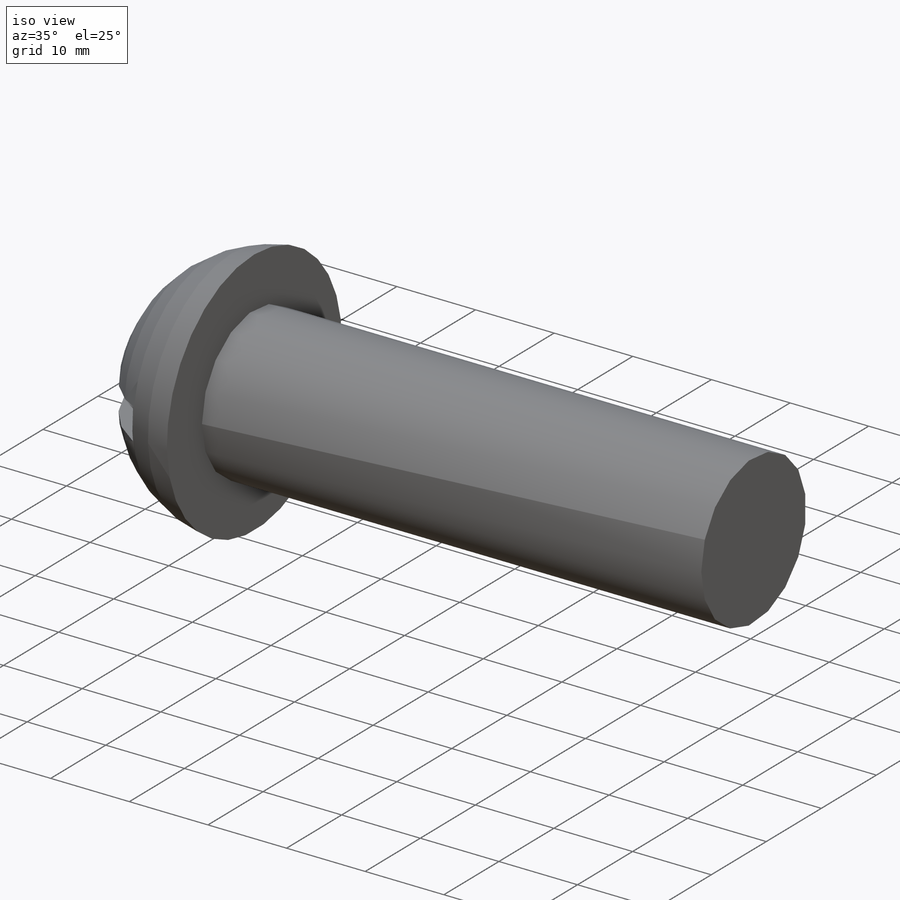
[diagram: iso view]
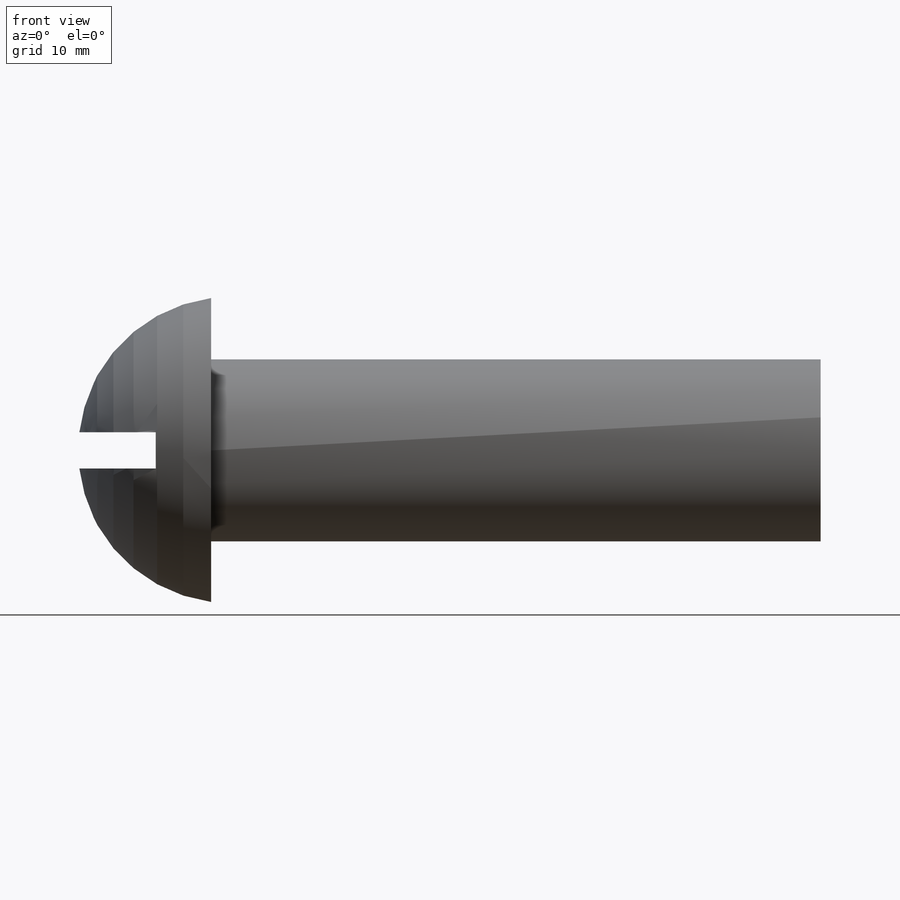
[diagram: front view]
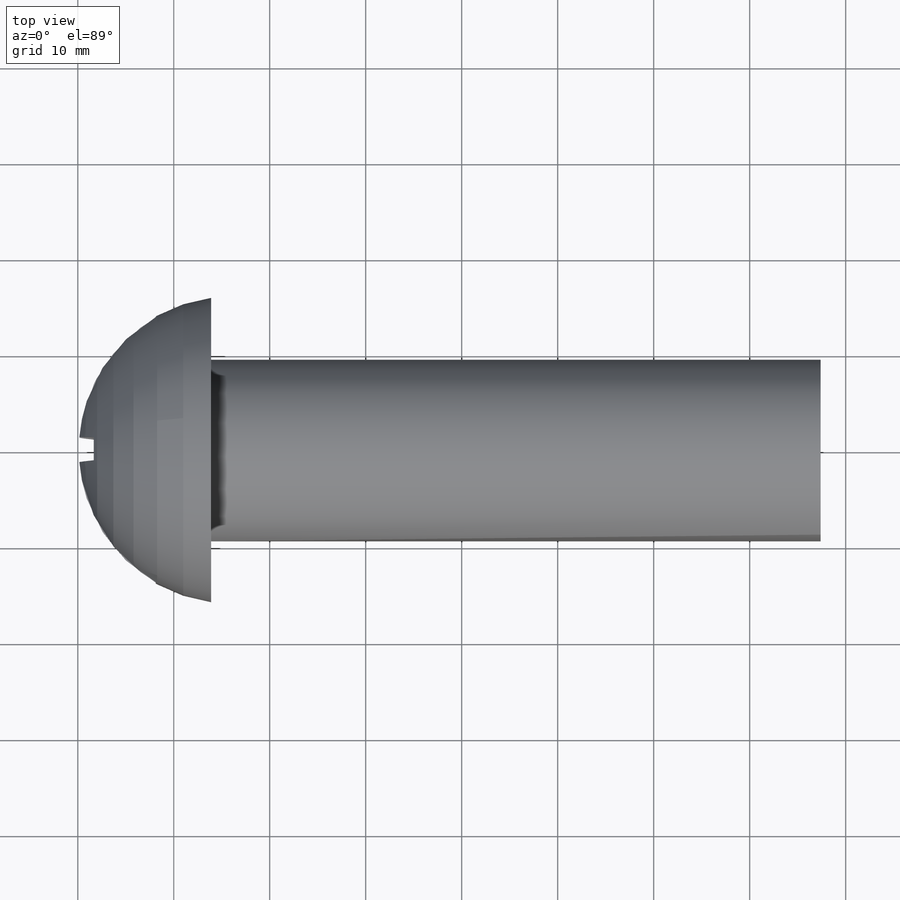
[diagram: top view]
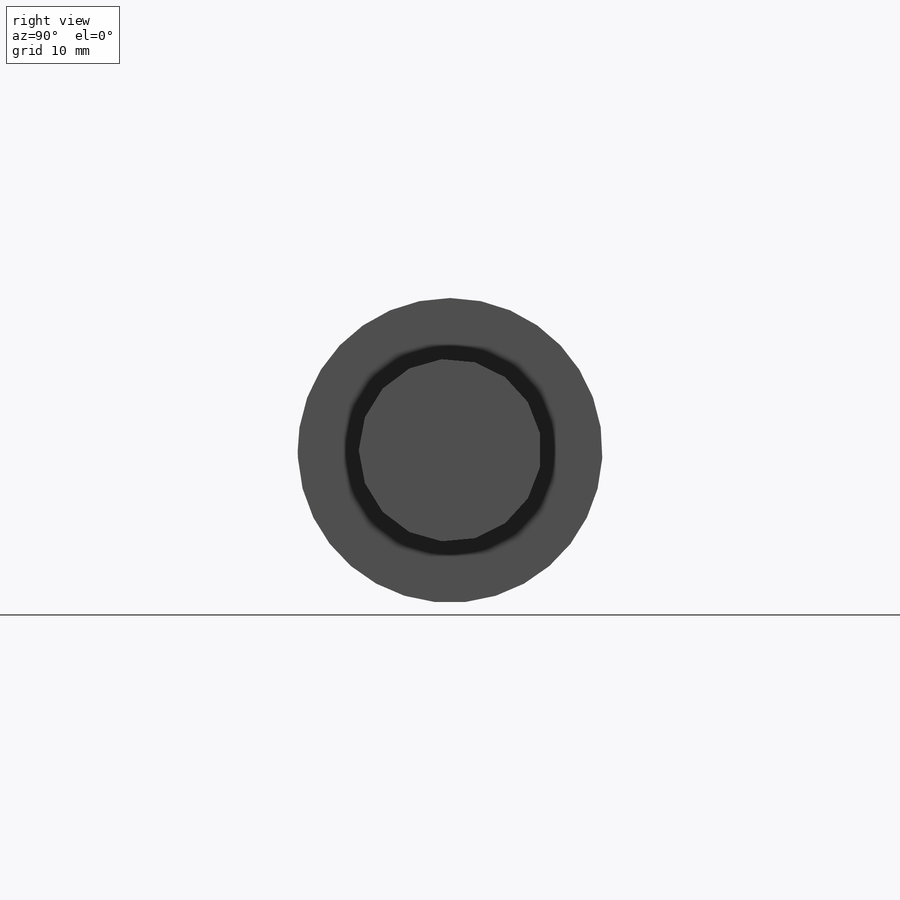
[diagram: right view]
SOLIDWORKS PART (.sldprt)
format: sldprt  version: not decoded by parser v0  size: 353,792 bytes
history: native  units: mm
features: sketch x5, plane x4, pattern_linear x4, material x1, revolve x1, thread x1, cut_revolve x1, cut_extrude x1, pattern_circular x1 (+8 scaffold rows collapsed)
feature tree (27):
  scaffold x8  (default folders/planes/origin — collapsed)
  material  "Material <not specified>"
  plane  "Plane1"
  plane  "Plane2"
  plane  "Plane3"
  sketch  "BodySke"  dims[c1.Diameter=19.05mm c1.Length=76.2mm c1.Head_dia=31.75mm c1.Head_ht=2.6162mm c2.Diameter=3.5052mm c2.Head_dia=6.604mm c2.Length=6.35mm c2.Advance=25.4mm c2.Thread_nom=6.35mm c2.Thread_lim=38.1mm c3.Advance=~0.79248mm c3.Thread_lim=48.895mm]
  revolve  "Base-Revolve"  [1 undecoded]
  thread  "ThreadCosmetic"  Diameter=5.55752mm Thread_length=5.55752mm Thread_minor=2.56032mm  [1 undecoded]
  cut_revolve  "ThreadSchematic"  [1 undecoded]
  sketch  "ThdSchSke"  dims[c1.Thread_minor=~1.03886mm c1.Diameter=~1.413535mm c1.Start=~0.988134mm c1.D4=~4.446753mm c1.Vee=60.0deg c2.Thread_minor=~1.03886mm c2.Start=~2.540025mm c2.D1=~0.108159mm c2.D2=~0.108159mm c3.D1=~0.216319mm c3.SideAngle=55.0deg c3.D2=~0.216319mm c3.VeeAngle=70.0deg c3.Thread_minor=~2.56032mm c3.Overcut=4.3815mm c3.Diameter=3.5052mm c3.D6=~8.326268mm c4.D1=~8.326268mm c5.D1=90.0deg c5.Start=11.1125mm c6.Start=~44.450025mm c7.Start=~11.988825mm c8.Start=~3.40868mm c8.D1=360.0deg c9.D1=360.0deg]
  sketch  "Sketch2"  dims[D1=6.604mm Slot_width=1.2192mm D2=3.302mm D3=0.6096mm]
  cut_extrude  "Slot"  Depth=1.7272mm Slot_depth=1.7272mm
  sketch  "Sketch3"  dims[Cross_width=0.8636mm D1=0.4318mm Cross_dia=4.2926mm D2=2.1463mm]
  plane  "Plane4"  Offset=2.4384mm Cross_depth=2.4384mm
  sketch  "Sketch4"  dims[D1=0.4318mm D2=0.2159mm D3=0.4318mm D4=0.2159mm]
  pattern_circular  "CirPattern1"  Count=2 Angle=90deg
  pattern_linear  "ThdSchPat"  Count1=9 Count2=1 Spacing1=0.69469mm Spacing2=50mm Num_threads=9 Advance=0.69469mm
  pattern_linear  "ConfigurationName"  Spacing1=0 CopiedFlag=0  [1 undecoded]
  pattern_linear  "PartNumberID"  [2 undecoded]
  pattern_linear  "ConfigurationName"  Spacing1=0 CopiedFlag=0  [1 undecoded]
decode coverage: 11 of 14 modeling features carry decoded parameters
note: ~ marks probable driven/reference dimensions
note: 7 parameter values undecoded
note: suppression state not decoded; provenance and decode notes live in map.json
